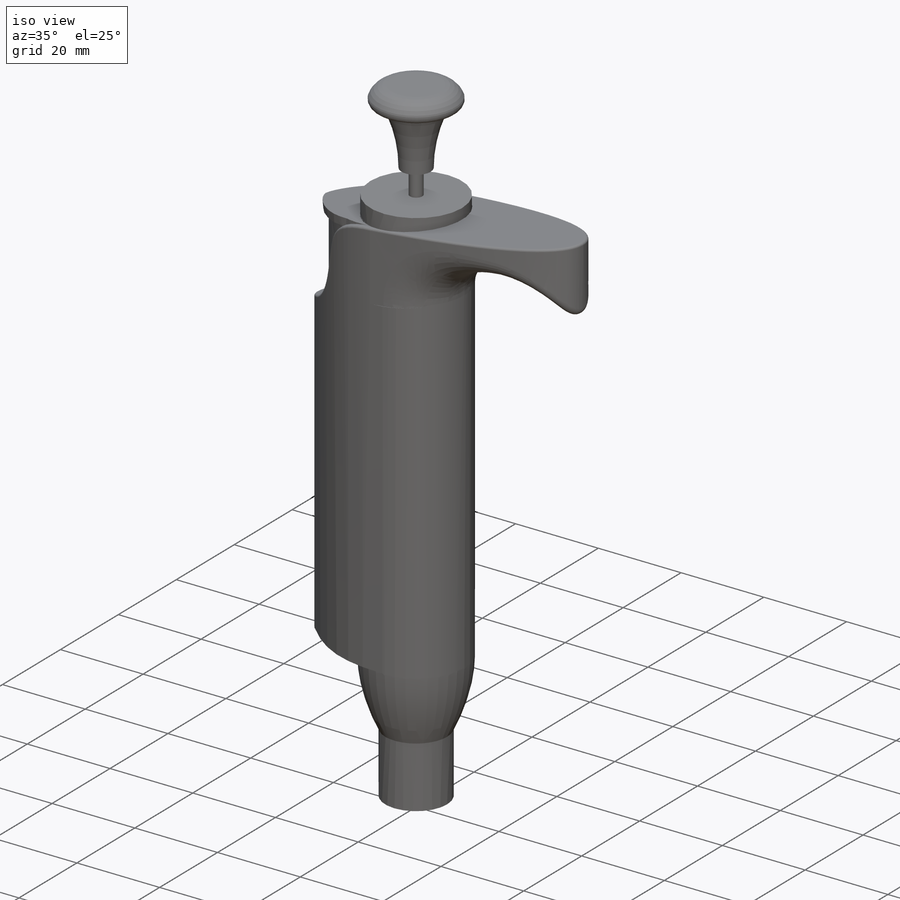
[diagram: iso view]
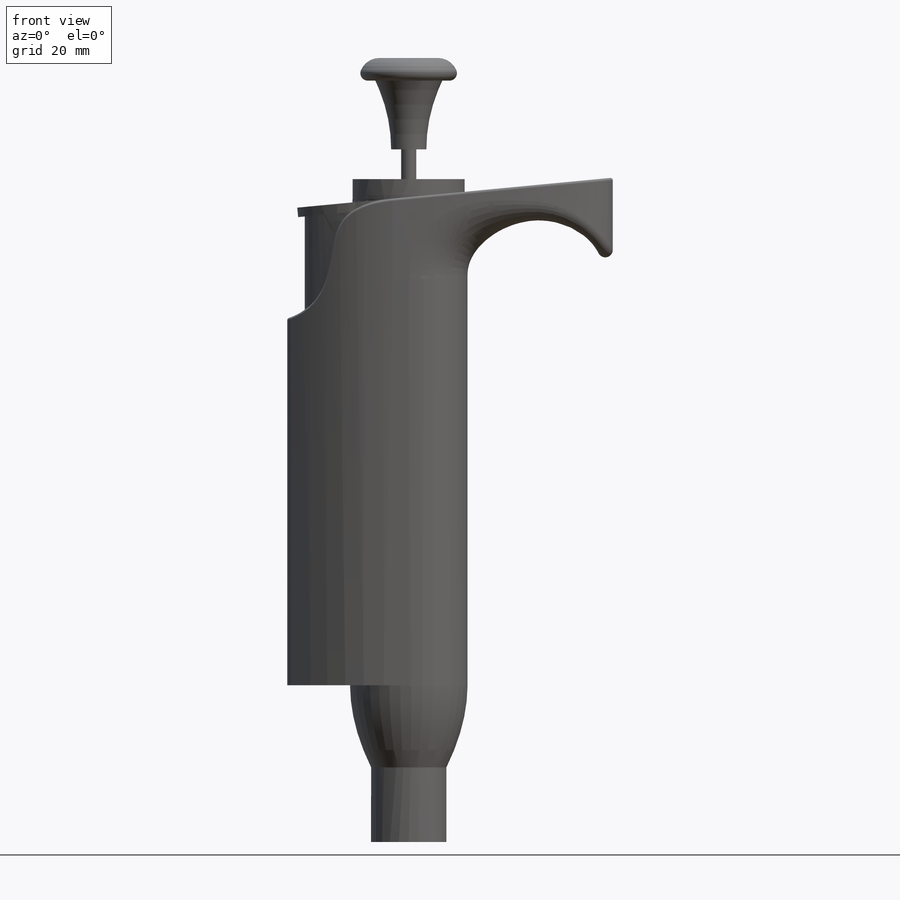
[diagram: front view]
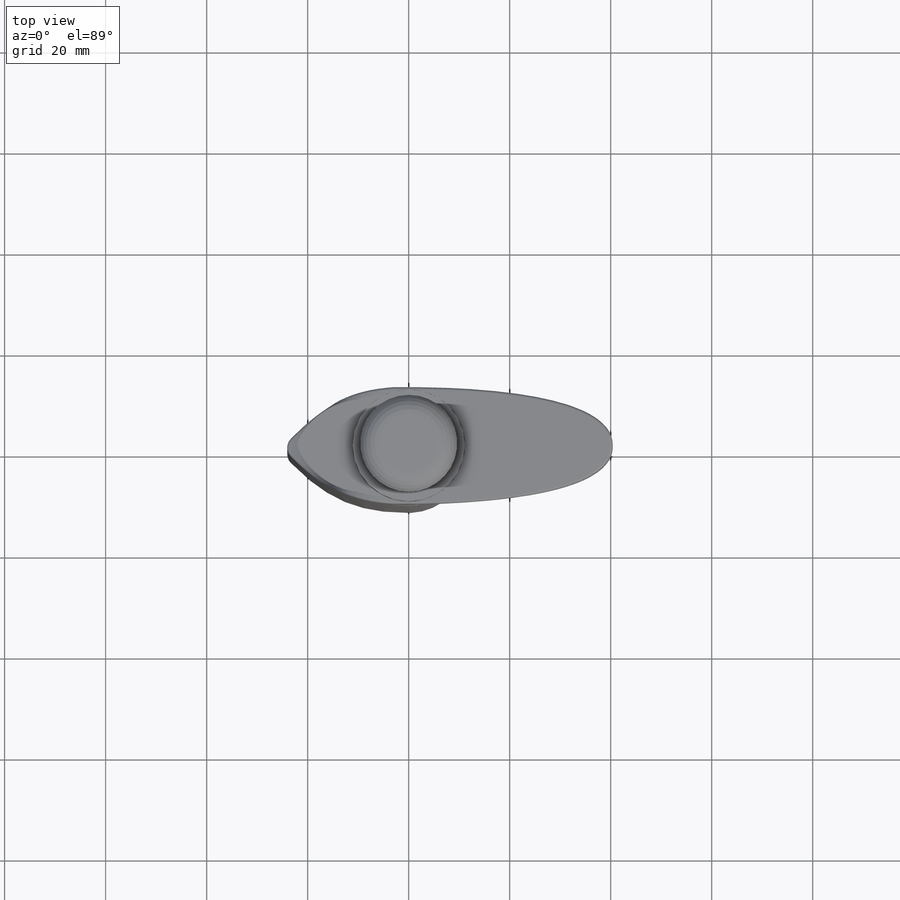
[diagram: top view]
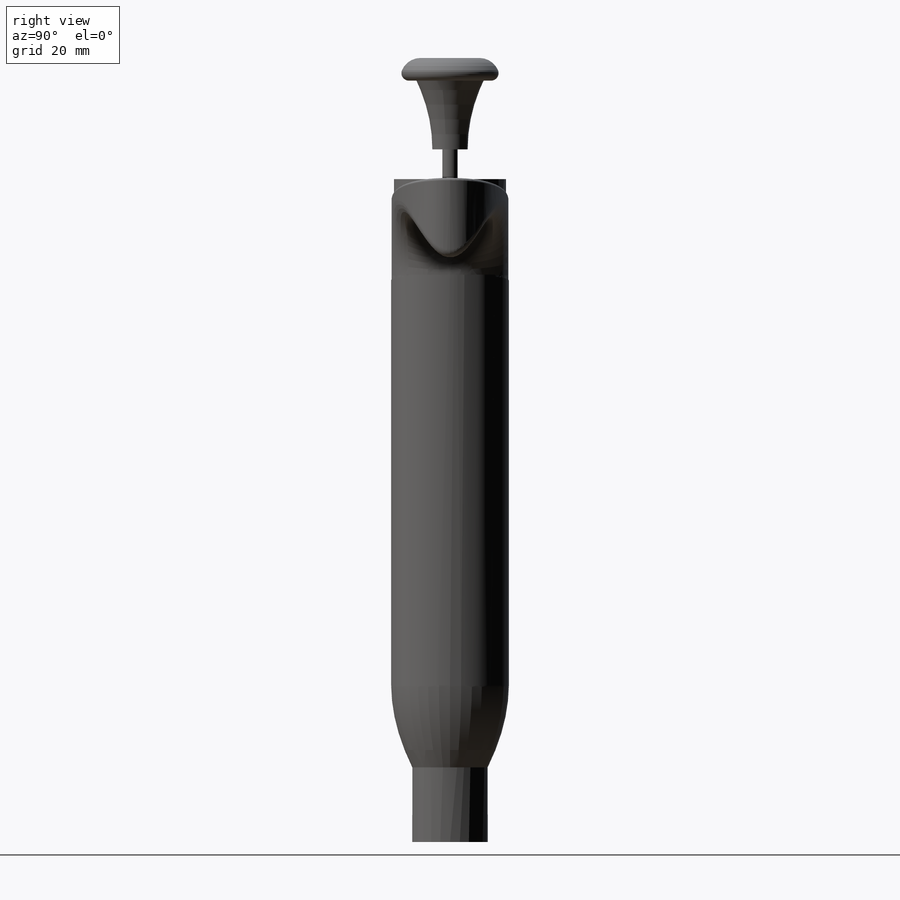
[diagram: right view]
SOLIDWORKS PART (.sldprt)
format: sldprt  version: not decoded by parser v0  size: 514,048 bytes
history: native  units: mm
features: sketch x13, extrude x8, cut_extrude x3, fillet x2, revolve x2, material x1 (+11 scaffold rows collapsed)
feature tree (40):
  scaffold x11  (default folders/planes/origin — collapsed)
  material  "Material <not specified>"
  sketch  "Sketch1"  dims[D1=23.3mm D2=5.0mm D3=35.7mm]
  extrude  "Boss-Extrude1"  Depth=96.5mm
  sketch  "Sketch2"  dims[D1=23.88mm D2=10.11mm]
  cut_extrude  "Cut-Extrude1"  Depth=96.5mm
  sketch  "Sketch3"  dims[c1.D1=15.86mm c1.D2=4.0mm c2.D1=15.86mm c2.D3=28.77mm c2.D4=7.0mm c2.D5=~14.625681mm]
  extrude  "Boss-Extrude2"  [1 undecoded]
  sketch  "Sketch5"
  cut_extrude  "Cut-Extrude4"  Depth=1.5mm
  fillet  "Fillet4"  Radius=0.5mm
  sketch  "Sketch6"  dims[D1=22.3mm]
  cut_extrude  "Cut-Extrude5"  Depth=26.5mm
  sketch  "Sketch7"
  extrude  "Boss-Extrude3"  Depth=3.5mm
  sketch  "Sketch8"  dims[D1=22.18mm]
  extrude  "Boss-Extrude4"  Depth=4mm
  sketch  "Sketch9"  dims[D1=3.0mm]
  extrude  "Boss-Extrude5"  Depth=5.9mm
  sketch  "Sketch10"  dims[c1.D2=4.0mm c1.D1=3.5mm c2.D2=13.3mm c2.D3=13.6mm c2.D4=4.5mm c2.D5=6.65mm c2.D6=9.8mm c2.D7=6.3mm]
  revolve  "Revolve1"  Angle=360deg
  fillet  "Fillet5"  Radius=1.5mm
  sketch  "Sketch11"  dims[D1=6.0mm D2=10.11mm]
  extrude  "Boss-Extrude6"  Depth=70mm
  sketch  "Sketch12"  dims[D2=1.5mm D1=2.0mm]
  extrude  "Boss-Extrude7"  Depth=1.88mm
  sketch  "Sketch13"  dims[D1=16.27mm D2=7.465mm]
  revolve  "Revolve2"  Angle=360deg
  sketch  "Sketch15"
  extrude  "Boss-Extrude8"  Depth=14.78mm
decode coverage: 24 of 28 modeling features carry decoded parameters
note: ~ marks probable driven/reference dimensions
note: 1 parameter value undecoded
note: suppression state not decoded; provenance and decode notes live in map.json
